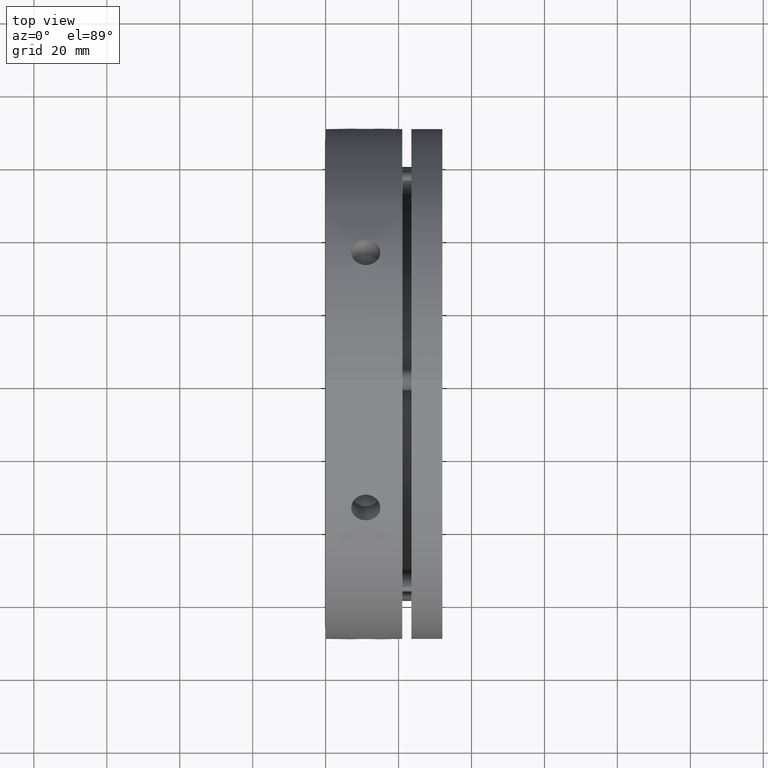
[diagram: clean part render]
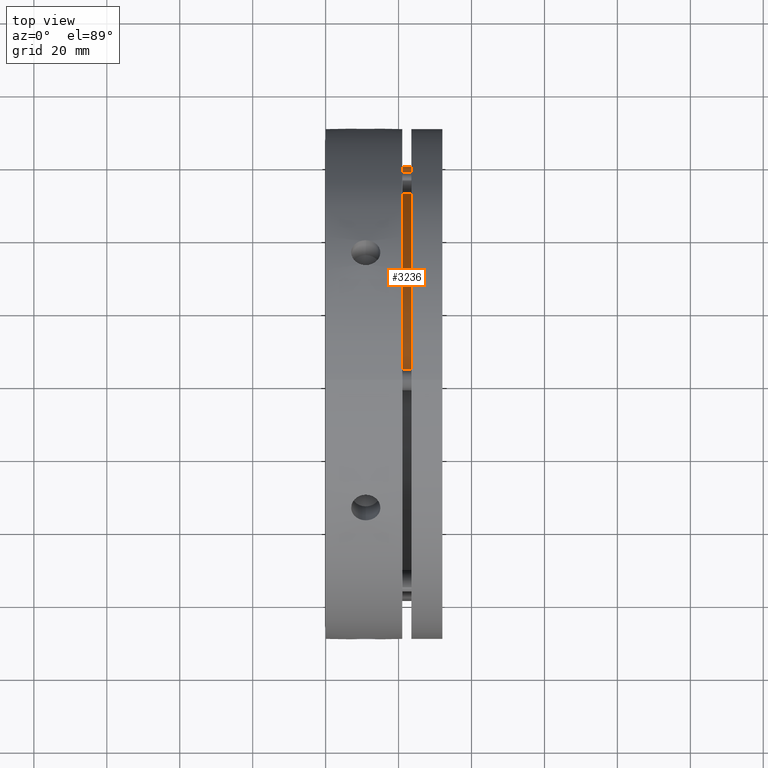
[diagram: same view with one face highlighted and labeled with its STEP entity id]
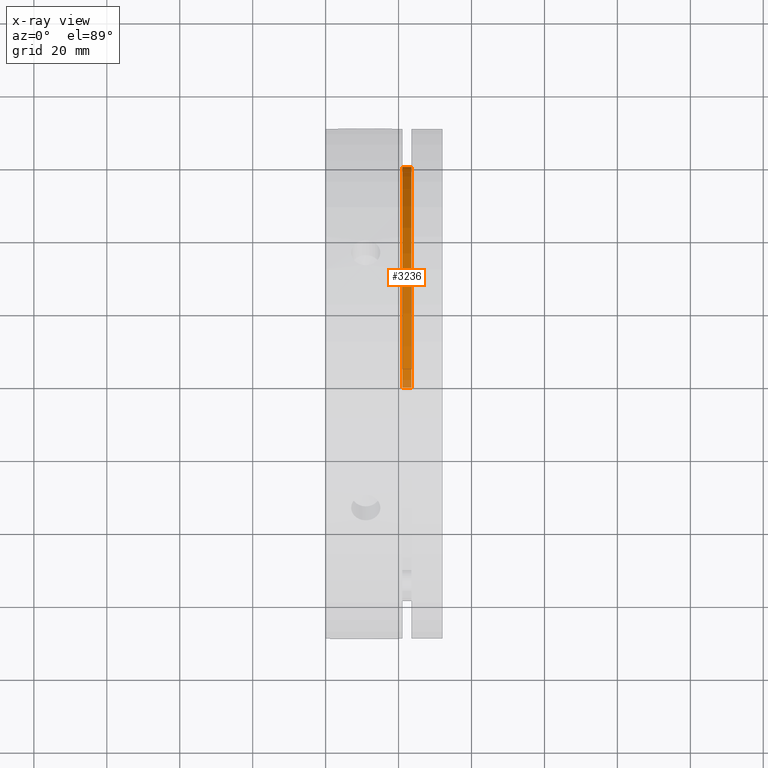
[diagram: x-ray of the same camera — body ghosted, the highlighted face saturated]
A machine part, top view. The second image highlights one B-rep face of the part: STEP entity #3236.
The next image is the same camera in x-ray: the body ghosted, the highlighted face saturated — about 3% of this face is hidden behind the body in this view.
In plain terms, the highlighted cylindrical surface (partial cylindrical patch) has radius 59.5 mm, axis along (-1, 0, 0).
Its self-contained STEP definition (entity closure, byte-faithful):
#152 = EDGE_LOOP ( 'NONE', ( #1571, #1570, #1569, #1568 ) ) ;
#258 = LINE ( 'NONE', #4434, #436 ) ;
#259 = CIRCLE ( 'NONE', #1422, 59.50000000000000700 ) ;
#263 = LINE ( 'NONE', #4427, #269 ) ;
#269 = VECTOR ( 'NONE', #4422, 1000.000000000000000 ) ;
#271 = CIRCLE ( 'NONE', #1419, 59.50000000000000700 ) ;
#436 = VECTOR ( 'NONE', #4431, 1000.000000000000000 ) ;
#1042 = CYLINDRICAL_SURFACE ( 'NONE', #1428, 59.50000000000000700 ) ;
#1076 = FACE_OUTER_BOUND ( 'NONE', #152, .T. ) ;
#1419 = AXIS2_PLACEMENT_3D ( 'NONE', #4440, #4441, #4442 ) ;
#1422 = AXIS2_PLACEMENT_3D ( 'NONE', #4435, #4436, #4437 ) ;
#1428 = AXIS2_PLACEMENT_3D ( 'NONE', #4212, #4210, #4208 ) ;
#1568 = ORIENTED_EDGE ( 'NONE', *, *, #3419, .F. ) ;
#1569 = ORIENTED_EDGE ( 'NONE', *, *, #3420, .T. ) ;
#1570 = ORIENTED_EDGE ( 'NONE', *, *, #3421, .T. ) ;
#1571 = ORIENTED_EDGE ( 'NONE', *, *, #3422, .T. ) ;
#1842 = VERTEX_POINT ( 'NONE', #3888 ) ;
#1843 = VERTEX_POINT ( 'NONE', #3889 ) ;
#1846 = VERTEX_POINT ( 'NONE', #3892 ) ;
#1852 = VERTEX_POINT ( 'NONE', #3898 ) ;
#3236 = ADVANCED_FACE ( 'NONE', ( #1076 ), #1042, .T. ) ;
#3419 = EDGE_CURVE ( 'NONE', #1846, #1842, #263, .T. ) ;
#3420 = EDGE_CURVE ( 'NONE', #1843, #1842, #259, .T. ) ;
#3421 = EDGE_CURVE ( 'NONE', #1852, #1843, #258, .T. ) ;
#3422 = EDGE_CURVE ( 'NONE', #1846, #1852, #271, .T. ) ;
#3888 = CARTESIAN_POINT ( 'NONE',  ( 20.99999999999998600, 0.0000000000000000000, 59.50000000000000700 ) ) ;
#3889 = CARTESIAN_POINT ( 'NONE',  ( 20.99999999999998600, 7.286648454926752400E-015, -59.50000000000000700 ) ) ;
#3892 = CARTESIAN_POINT ( 'NONE',  ( 23.49999999999998600, 0.0000000000000000000, 59.50000000000000700 ) ) ;
#3898 = CARTESIAN_POINT ( 'NONE',  ( 23.49999999999998600, 7.286648454926752400E-015, -59.50000000000000700 ) ) ;
#4208 = DIRECTION ( 'NONE',  ( 0.0000000000000000000, 0.0000000000000000000, 1.000000000000000000 ) ) ;
#4210 = DIRECTION ( 'NONE',  ( -1.000000000000000000, 0.0000000000000000000, 0.0000000000000000000 ) ) ;
#4212 = CARTESIAN_POINT ( 'NONE',  ( 22.24999999999998600, 0.0000000000000000000, 0.0000000000000000000 ) ) ;
#4422 = DIRECTION ( 'NONE',  ( -1.000000000000000000, 0.0000000000000000000, 0.0000000000000000000 ) ) ;
#4427 = CARTESIAN_POINT ( 'NONE',  ( 22.24999999999998600, 0.0000000000000000000, 59.50000000000000700 ) ) ;
#4431 = DIRECTION ( 'NONE',  ( -1.000000000000000000, 0.0000000000000000000, 0.0000000000000000000 ) ) ;
#4434 = CARTESIAN_POINT ( 'NONE',  ( 22.24999999999998600, 7.286648454926752400E-015, -59.50000000000000700 ) ) ;
#4435 = CARTESIAN_POINT ( 'NONE',  ( 20.99999999999998600, 0.0000000000000000000, 0.0000000000000000000 ) ) ;
#4436 = DIRECTION ( 'NONE',  ( 1.000000000000000000, -0.0000000000000000000, -0.0000000000000000000 ) ) ;
#4437 = DIRECTION ( 'NONE',  ( 0.0000000000000000000, 0.0000000000000000000, 1.000000000000000000 ) ) ;
#4440 = CARTESIAN_POINT ( 'NONE',  ( 23.49999999999998600, 0.0000000000000000000, 0.0000000000000000000 ) ) ;
#4441 = DIRECTION ( 'NONE',  ( -1.000000000000000000, 0.0000000000000000000, 0.0000000000000000000 ) ) ;
#4442 = DIRECTION ( 'NONE',  ( 0.0000000000000000000, 0.0000000000000000000, 1.000000000000000000 ) ) ;